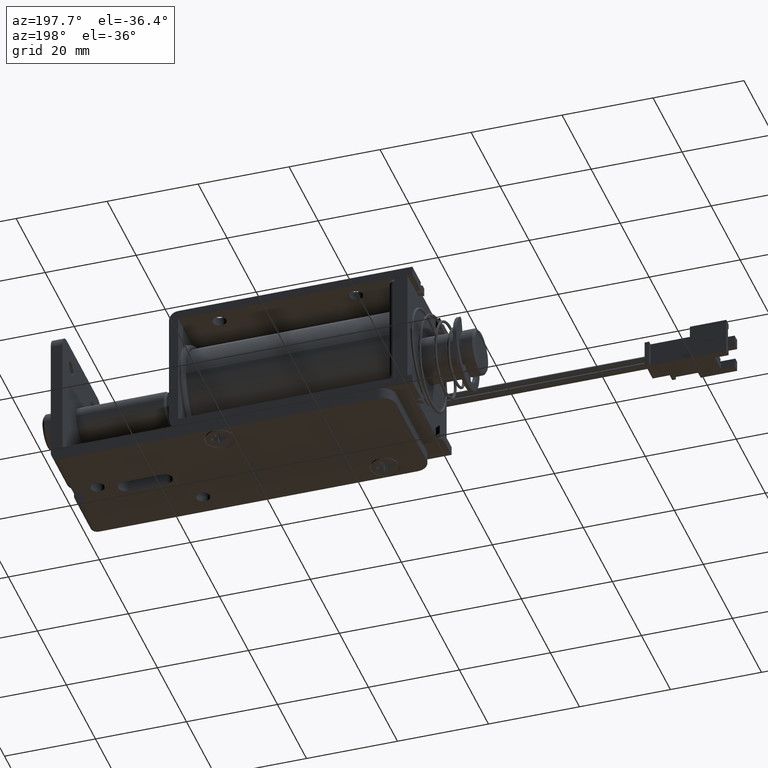
[diagram: clean part render]
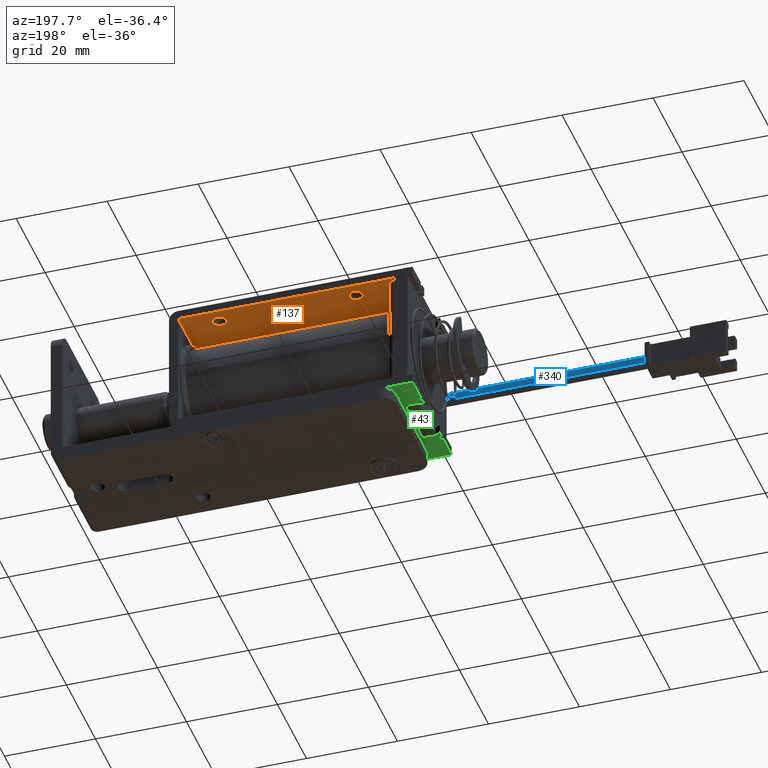
[diagram: same view with three faces highlighted in distinct colors, each labeled with its STEP entity id]
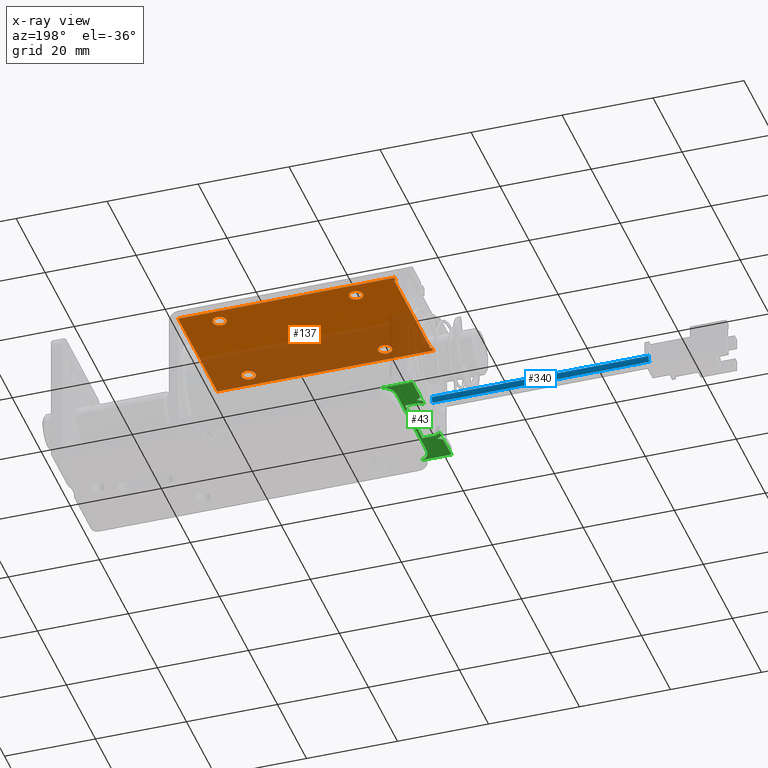
[diagram: x-ray of the same camera — body ghosted, the three highlighted faces saturated]
A machine part, auxiliary view with three faces highlighted in distinct colors.
The next image is the same camera in x-ray (body ghosted, the three faces saturated) — at least one of them is partly hidden behind the body in this view.
Their STEP definitions:

[orange] entity #137 — the highlighted planar face has unit normal (0, 0, -1).
#137=ADVANCED_FACE('',(#1387,#1388,#1389,#1390,#1391),#1386,.T.);
#1386=PLANE('',#4408);
#1387=FACE_OUTER_BOUND('',#4409,.T.);
#1388=FACE_BOUND('',#4410,.T.);
#1389=FACE_BOUND('',#4411,.T.);
#1390=FACE_BOUND('',#4412,.T.);
#1391=FACE_BOUND('',#4413,.T.);
#4405=CARTESIAN_POINT('',(-2.32500000000E+001,-1.62000000000E+001,1.30000000000E+001));
#4406=DIRECTION('',(0.00000000000E+000,0.00000000000E+000,-1.00000000000E+000));
#4407=DIRECTION('',(-1.00000000000E+000,0.00000000000E+000,0.00000000000E+000));
#4408=AXIS2_PLACEMENT_3D('',#4405,#4406,#4407);
#4409=EDGE_LOOP('',(#7561,#7562,#7563,#7564,#7565,#7566,#7567,#7568));
#4410=EDGE_LOOP('',(#7569,#7570));
#4411=EDGE_LOOP('',(#7571,#7572));
#4412=EDGE_LOOP('',(#7573,#7574));
#4413=EDGE_LOOP('',(#7575,#7576));
#7561=ORIENTED_EDGE('',*,*,#9155,.T.);
#7562=ORIENTED_EDGE('',*,*,#9156,.T.);
#7563=ORIENTED_EDGE('',*,*,#8781,.T.);
#7564=ORIENTED_EDGE('',*,*,#9157,.F.);
#7565=ORIENTED_EDGE('',*,*,#9158,.T.);
#7566=ORIENTED_EDGE('',*,*,#9159,.T.);
#7567=ORIENTED_EDGE('',*,*,#9160,.T.);
#7568=ORIENTED_EDGE('',*,*,#9161,.T.);
#7569=ORIENTED_EDGE('',*,*,#9162,.F.);
#7570=ORIENTED_EDGE('',*,*,#9163,.F.);
#7571=ORIENTED_EDGE('',*,*,#9164,.F.);
#7572=ORIENTED_EDGE('',*,*,#9165,.F.);
#7573=ORIENTED_EDGE('',*,*,#9166,.F.);
#7574=ORIENTED_EDGE('',*,*,#9167,.F.);
#7575=ORIENTED_EDGE('',*,*,#9168,.F.);
#7576=ORIENTED_EDGE('',*,*,#9169,.F.);
#8781=EDGE_CURVE('',#9888,#9880,#9889,.T.);
#9155=EDGE_CURVE('',#12418,#12419,#12420,.T.);
#9156=EDGE_CURVE('',#12419,#9888,#12426,.T.);
#9157=EDGE_CURVE('',#12432,#9880,#12433,.T.);
#9158=EDGE_CURVE('',#12432,#12439,#12440,.T.);
#9159=EDGE_CURVE('',#12439,#12446,#12447,.T.);
#9160=EDGE_CURVE('',#12446,#12453,#12454,.T.);
#9161=EDGE_CURVE('',#12453,#12418,#12460,.T.);
#9162=EDGE_CURVE('',#12466,#12467,#12468,.T.);
#9163=EDGE_CURVE('',#12467,#12466,#12474,.T.);
#9164=EDGE_CURVE('',#12480,#12481,#12482,.T.);
#9165=EDGE_CURVE('',#12481,#12480,#12488,.T.);
#9166=EDGE_CURVE('',#12494,#12495,#12496,.T.);
#9167=EDGE_CURVE('',#12495,#12494,#12502,.T.);
#9168=EDGE_CURVE('',#12508,#12509,#12510,.T.);
#9169=EDGE_CURVE('',#12509,#12508,#12516,.T.);
#9880=VERTEX_POINT('',#15851);
#9888=VERTEX_POINT('',#15856);
#9889=LINE('',#15857,#15858);
#12418=VERTEX_POINT('',#17363);
#12419=VERTEX_POINT('',#17364);
#12420=LINE('',#17365,#17366);
#12426=LINE('',#17368,#17369);
#12432=VERTEX_POINT('',#17371);
#12433=LINE('',#17372,#17373);
#12439=VERTEX_POINT('',#17375);
#12440=LINE('',#17376,#17377);
#12446=VERTEX_POINT('',#17379);
#12447=LINE('',#17380,#17381);
#12453=VERTEX_POINT('',#17383);
#12454=LINE('',#17384,#17385);
#12460=LINE('',#17387,#17388);
#12466=VERTEX_POINT('',#17390);
#12467=VERTEX_POINT('',#17391);
#12468=CIRCLE('',#17395,1.50000000000E+000);
#12474=CIRCLE('',#17399,1.50000000000E+000);
#12480=VERTEX_POINT('',#17400);
#12481=VERTEX_POINT('',#17401);
#12482=CIRCLE('',#17405,1.50000000000E+000);
#12488=CIRCLE('',#17409,1.50000000000E+000);
#12494=VERTEX_POINT('',#17410);
#12495=VERTEX_POINT('',#17411);
#12496=CIRCLE('',#17415,1.50000000000E+000);
#12502=CIRCLE('',#17419,1.50000000000E+000);
#12508=VERTEX_POINT('',#17420);
#12509=VERTEX_POINT('',#17421);
#12510=CIRCLE('',#17425,1.50000000000E+000);
#12516=CIRCLE('',#17429,1.50000000000E+000);
#15851=CARTESIAN_POINT('',(-2.80000000000E+001,-1.35000000000E+001,1.30000000000E+001));
#15856=CARTESIAN_POINT('',(-2.80000000000E+001,1.35000000000E+001,1.30000000000E+001));
#15857=CARTESIAN_POINT('',(-2.80000000000E+001,1.35000000000E+001,1.30000000000E+001));
#15858=VECTOR('',#15859,2.70000000000E+001);
#15859=DIRECTION('',(0.00000000000E+000,-1.00000000000E+000,0.00000000000E+000));
#17363=CARTESIAN_POINT('',(-7.55000000000E+001,1.25000000000E+001,1.30000000000E+001));
#17364=CARTESIAN_POINT('',(-7.55000000000E+001,1.35000000000E+001,1.30000000000E+001));
#17365=CARTESIAN_POINT('',(-7.55000000000E+001,1.25000000000E+001,1.30000000000E+001));
#17366=VECTOR('',#17367,1.00000000000E+000);
#17367=DIRECTION('',(0.00000000000E+000,1.00000000000E+000,0.00000000000E+000));
#17368=CARTESIAN_POINT('',(-7.55000000000E+001,1.35000000000E+001,1.30000000000E+001));
#17369=VECTOR('',#17370,4.75000000000E+001);
#17370=DIRECTION('',(1.00000000000E+000,0.00000000000E+000,0.00000000000E+000));
#17371=CARTESIAN_POINT('',(-7.55000000000E+001,-1.35000000000E+001,1.30000000000E+001));
#17372=CARTESIAN_POINT('',(-7.55000000000E+001,-1.35000000000E+001,1.30000000000E+001));
#17373=VECTOR('',#17374,4.75000000000E+001);
#17374=DIRECTION('',(1.00000000000E+000,0.00000000000E+000,0.00000000000E+000));
#17375=CARTESIAN_POINT('',(-7.55000000000E+001,-1.25000000000E+001,1.30000000000E+001));
#17376=CARTESIAN_POINT('',(-7.55000000000E+001,-1.35000000000E+001,1.30000000000E+001));
#17377=VECTOR('',#17378,1.00000000000E+000);
#17378=DIRECTION('',(0.00000000000E+000,1.00000000000E+000,0.00000000000E+000));
#17379=CARTESIAN_POINT('',(-7.52000000000E+001,-1.25000000000E+001,1.30000000000E+001));
#17380=CARTESIAN_POINT('',(-7.55000000000E+001,-1.25000000000E+001,1.30000000000E+001));
#17381=VECTOR('',#17382,3.00000000000E-001);
#17382=DIRECTION('',(1.00000000000E+000,0.00000000000E+000,0.00000000000E+000));
#17383=CARTESIAN_POINT('',(-7.52000000000E+001,1.25000000000E+001,1.30000000000E+001));
#17384=CARTESIAN_POINT('',(-7.52000000000E+001,-1.25000000000E+001,1.30000000000E+001));
#17385=VECTOR('',#17386,2.50000000000E+001);
#17386=DIRECTION('',(0.00000000000E+000,1.00000000000E+000,0.00000000000E+000));
#17387=CARTESIAN_POINT('',(-7.52000000000E+001,1.25000000000E+001,1.30000000000E+001));
#17388=VECTOR('',#17389,3.00000000000E-001);
#17389=DIRECTION('',(-1.00000000000E+000,0.00000000000E+000,0.00000000000E+000));
#17390=CARTESIAN_POINT('',(-3.45000000000E+001,1.00000000000E+001,1.30000000000E+001));
#17391=CARTESIAN_POINT('',(-3.75000000000E+001,1.00000000000E+001,1.30000000000E+001));
#17392=CARTESIAN_POINT('',(-3.60000000000E+001,1.00000000000E+001,1.30000000000E+001));
#17393=DIRECTION('',(-0.00000000000E+000,0.00000000000E+000,-1.00000000000E+000));
#17394=DIRECTION('',(-1.00000000000E+000,-1.22460635382E-016,0.00000000000E+000));
#17395=AXIS2_PLACEMENT_3D('',#17392,#17393,#17394);
#17396=CARTESIAN_POINT('',(-3.60000000000E+001,1.00000000000E+001,1.30000000000E+001));
#17397=DIRECTION('',(-0.00000000000E+000,0.00000000000E+000,-1.00000000000E+000));
#17398=DIRECTION('',(-1.00000000000E+000,-1.22460635382E-016,0.00000000000E+000));
#17399=AXIS2_PLACEMENT_3D('',#17396,#17397,#17398);
#17400=CARTESIAN_POINT('',(-3.45000000000E+001,-1.00000000000E+001,1.30000000000E+001));
#17401=CARTESIAN_POINT('',(-3.75000000000E+001,-1.00000000000E+001,1.30000000000E+001));
#17402=CARTESIAN_POINT('',(-3.60000000000E+001,-1.00000000000E+001,1.30000000000E+001));
#17403=DIRECTION('',(-0.00000000000E+000,0.00000000000E+000,-1.00000000000E+000));
#17404=DIRECTION('',(-1.00000000000E+000,-1.22460635382E-016,0.00000000000E+000));
#17405=AXIS2_PLACEMENT_3D('',#17402,#17403,#17404);
#17406=CARTESIAN_POINT('',(-3.60000000000E+001,-1.00000000000E+001,1.30000000000E+001));
#17407=DIRECTION('',(-0.00000000000E+000,0.00000000000E+000,-1.00000000000E+000));
#17408=DIRECTION('',(-1.00000000000E+000,-1.22460635382E-016,0.00000000000E+000));
#17409=AXIS2_PLACEMENT_3D('',#17406,#17407,#17408);
#17410=CARTESIAN_POINT('',(-6.45000000000E+001,-1.00000000000E+001,1.30000000000E+001));
#17411=CARTESIAN_POINT('',(-6.75000000000E+001,-1.00000000000E+001,1.30000000000E+001));
#17412=CARTESIAN_POINT('',(-6.60000000000E+001,-1.00000000000E+001,1.30000000000E+001));
#17413=DIRECTION('',(-0.00000000000E+000,0.00000000000E+000,-1.00000000000E+000));
#17414=DIRECTION('',(-1.00000000000E+000,-1.22460635382E-016,0.00000000000E+000));
#17415=AXIS2_PLACEMENT_3D('',#17412,#17413,#17414);
#17416=CARTESIAN_POINT('',(-6.60000000000E+001,-1.00000000000E+001,1.30000000000E+001));
#17417=DIRECTION('',(-0.00000000000E+000,0.00000000000E+000,-1.00000000000E+000));
#17418=DIRECTION('',(-1.00000000000E+000,-1.22460635382E-016,0.00000000000E+000));
#17419=AXIS2_PLACEMENT_3D('',#17416,#17417,#17418);
#17420=CARTESIAN_POINT('',(-6.45000000000E+001,1.00000000000E+001,1.30000000000E+001));
#17421=CARTESIAN_POINT('',(-6.75000000000E+001,1.00000000000E+001,1.30000000000E+001));
#17422=CARTESIAN_POINT('',(-6.60000000000E+001,1.00000000000E+001,1.30000000000E+001));
#17423=DIRECTION('',(-0.00000000000E+000,0.00000000000E+000,-1.00000000000E+000));
#17424=DIRECTION('',(-1.00000000000E+000,-1.22460635382E-016,0.00000000000E+000));
#17425=AXIS2_PLACEMENT_3D('',#17422,#17423,#17424);
#17426=CARTESIAN_POINT('',(-6.60000000000E+001,1.00000000000E+001,1.30000000000E+001));
#17427=DIRECTION('',(-0.00000000000E+000,0.00000000000E+000,-1.00000000000E+000));
#17428=DIRECTION('',(-1.00000000000E+000,-1.22460635382E-016,0.00000000000E+000));
#17429=AXIS2_PLACEMENT_3D('',#17426,#17427,#17428);

[blue] entity #340 — the highlighted cylindrical surface (edge-blend (fillet) strip) has radius 0.7 mm, axis along (-1, -0, 0).
#340=ADVANCED_FACE('',(#3429),#3428,.T.);
#3428=CYLINDRICAL_SURFACE('',#6150,6.99999999996E-001);
#3429=FACE_OUTER_BOUND('',#6151,.T.);
#6147=CARTESIAN_POINT('',(-1.22636061680E+002,-1.43000000000E+001,7.99999999996E-001));
#6148=DIRECTION('',(-1.00000000000E+000,-0.00000000000E+000,0.00000000000E+000));
#6149=DIRECTION('',(0.00000000000E+000,0.00000000000E+000,1.00000000000E+000));
#6150=AXIS2_PLACEMENT_3D('',#6147,#6148,#6149);
#6151=EDGE_LOOP('',(#8523,#8524,#8525,#8526,#8527));
#8523=ORIENTED_EDGE('',*,*,#9025,.F.);
#8524=ORIENTED_EDGE('',*,*,#9607,.F.);
#8525=ORIENTED_EDGE('',*,*,#9608,.F.);
#8526=ORIENTED_EDGE('',*,*,#9609,.F.);
#8527=ORIENTED_EDGE('',*,*,#9610,.T.);
#9025=EDGE_CURVE('',#11538,#11539,#11540,.T.);
#9607=EDGE_CURVE('',#15374,#11538,#15375,.T.);
#9608=EDGE_CURVE('',#15381,#15374,#15382,.T.);
#9609=EDGE_CURVE('',#15388,#15381,#15389,.T.);
#9610=EDGE_CURVE('',#15388,#11539,#15395,.T.);
#11538=VERTEX_POINT('',#16838);
#11539=VERTEX_POINT('',#16839);
#11540=CIRCLE('',#16843,6.99999999996E-001);
#15374=VERTEX_POINT('',#19303);
#15375=(BOUNDED_CURVE() B_SPLINE_CURVE(1,(#19304,#19305),.UNSPECIFIED.,.F.,.F.) B_SPLINE_CURVE_WITH_KNOTS((2,2),(8.33333335810E-002,9.16666666255E-001),.UNSPECIFIED.) CURVE() GEOMETRIC_REPRESENTATION_ITEM() RATIONAL_B_SPLINE_CURVE((1.00000000000E+000,1.00000000000E+000)) REPRESENTATION_ITEM('') );
#15381=VERTEX_POINT('',#19306);
#15382=CIRCLE('',#19310,6.99999999996E-001);
#15388=VERTEX_POINT('',#19311);
#15389=CIRCLE('',#19315,6.99999999996E-001);
#15395=(BOUNDED_CURVE() B_SPLINE_CURVE(1,(#19316,#19317),.UNSPECIFIED.,.F.,.F.) B_SPLINE_CURVE_WITH_KNOTS((2,2),(8.33333333333E-002,9.16666666667E-001),.UNSPECIFIED.) CURVE() GEOMETRIC_REPRESENTATION_ITEM() RATIONAL_B_SPLINE_CURVE((7.50000000000E-001,7.50000000000E-001)) REPRESENTATION_ITEM('') );
#16838=CARTESIAN_POINT('',(-1.22736061680E+002,-1.43000000000E+001,1.49999999999E+000));
#16839=CARTESIAN_POINT('',(-1.22736061680E+002,-1.43000000000E+001,1.00000000000E-001));
#16840=CARTESIAN_POINT('',(-1.22736061680E+002,-1.43000000000E+001,7.99999999996E-001));
#16841=DIRECTION('',(-1.00000000000E+000,0.00000000000E+000,0.00000000000E+000));
#16842=DIRECTION('',(0.00000000000E+000,-1.22460635382E-016,1.00000000000E+000));
#16843=AXIS2_PLACEMENT_3D('',#16840,#16841,#16842);
#19303=CARTESIAN_POINT('',(-7.50999999999E+001,-1.43000000000E+001,1.49999999999E+000));
#19304=CARTESIAN_POINT('',(-7.51000000141E+001,-1.43000000000E+001,1.49999999999E+000));
#19305=CARTESIAN_POINT('',(-1.22736061657E+002,-1.43000000000E+001,1.49999999999E+000));
#19306=CARTESIAN_POINT('',(-7.50999999999E+001,-1.36000000000E+001,7.99999999996E-001));
#19307=CARTESIAN_POINT('',(-7.50999999999E+001,-1.43000000000E+001,7.99999999996E-001));
#19308=DIRECTION('',(1.00000000000E+000,-2.73691106313E-048,-1.83697019872E-016));
#19309=DIRECTION('',(1.83697019872E-016,-1.22460635382E-016,1.00000000000E+000));
#19310=AXIS2_PLACEMENT_3D('',#19307,#19308,#19309);
#19311=CARTESIAN_POINT('',(-7.50999999999E+001,-1.43000726535E+001,1.00000003770E-001));
#19312=CARTESIAN_POINT('',(-7.50999999999E+001,-1.43000000000E+001,7.99999999996E-001));
#19313=DIRECTION('',(1.00000000000E+000,-2.73691106313E-048,-1.83697019872E-016));
#19314=DIRECTION('',(1.83697019872E-016,-1.22460635382E-016,1.00000000000E+000));
#19315=AXIS2_PLACEMENT_3D('',#19312,#19313,#19314);
#19316=CARTESIAN_POINT('',(-7.50999999999E+001,-1.43000000000E+001,1.00000000000E-001));
#19317=CARTESIAN_POINT('',(-1.22736061680E+002,-1.43000000000E+001,1.00000000000E-001));

[green] entity #43 — the highlighted planar face has unit normal (0, 0, -1).
#43=ADVANCED_FACE('',(#418),#417,.T.);
#417=PLANE('',#3907);
#418=FACE_OUTER_BOUND('',#3908,.T.);
#3904=CARTESIAN_POINT('',(-7.20949260323E+001,-1.60800000000E+001,-1.50000000000E+001));
#3905=DIRECTION('',(0.00000000000E+000,0.00000000000E+000,-1.00000000000E+000));
#3906=DIRECTION('',(-1.00000000000E+000,0.00000000000E+000,0.00000000000E+000));
#3907=AXIS2_PLACEMENT_3D('',#3904,#3905,#3906);
#3908=EDGE_LOOP('',(#6938,#6939,#6940,#6941,#6942,#6943,#6944,#6945,#6946,#6947,#6948,#6949,#6950,#6951,#6952,#6953,#6954,#6955));
#6938=ORIENTED_EDGE('',*,*,#8762,.T.);
#6939=ORIENTED_EDGE('',*,*,#8763,.F.);
#6940=ORIENTED_EDGE('',*,*,#8764,.F.);
#6941=ORIENTED_EDGE('',*,*,#8765,.F.);
#6942=ORIENTED_EDGE('',*,*,#8766,.F.);
#6943=ORIENTED_EDGE('',*,*,#8767,.F.);
#6944=ORIENTED_EDGE('',*,*,#8768,.F.);
#6945=ORIENTED_EDGE('',*,*,#8769,.T.);
#6946=ORIENTED_EDGE('',*,*,#8770,.T.);
#6947=ORIENTED_EDGE('',*,*,#8771,.T.);
#6948=ORIENTED_EDGE('',*,*,#8772,.T.);
#6949=ORIENTED_EDGE('',*,*,#8773,.F.);
#6950=ORIENTED_EDGE('',*,*,#8774,.F.);
#6951=ORIENTED_EDGE('',*,*,#8775,.F.);
#6952=ORIENTED_EDGE('',*,*,#8776,.F.);
#6953=ORIENTED_EDGE('',*,*,#8777,.F.);
#6954=ORIENTED_EDGE('',*,*,#8778,.T.);
#6955=ORIENTED_EDGE('',*,*,#8779,.T.);
#8762=EDGE_CURVE('',#9754,#9755,#9756,.T.);
#8763=EDGE_CURVE('',#9762,#9755,#9763,.T.);
#8764=EDGE_CURVE('',#9769,#9762,#9770,.T.);
#8765=EDGE_CURVE('',#9776,#9769,#9777,.T.);
#8766=EDGE_CURVE('',#9783,#9776,#9784,.T.);
#8767=EDGE_CURVE('',#9790,#9783,#9791,.T.);
#8768=EDGE_CURVE('',#9797,#9790,#9798,.T.);
#8769=EDGE_CURVE('',#9797,#9804,#9805,.T.);
#8770=EDGE_CURVE('',#9804,#9811,#9812,.T.);
#8771=EDGE_CURVE('',#9811,#9818,#9819,.T.);
#8772=EDGE_CURVE('',#9818,#9825,#9826,.T.);
#8773=EDGE_CURVE('',#9832,#9825,#9833,.T.);
#8774=EDGE_CURVE('',#9839,#9832,#9840,.T.);
#8775=EDGE_CURVE('',#9846,#9839,#9847,.T.);
#8776=EDGE_CURVE('',#9853,#9846,#9854,.T.);
#8777=EDGE_CURVE('',#9860,#9853,#9861,.T.);
#8778=EDGE_CURVE('',#9860,#9867,#9868,.T.);
#8779=EDGE_CURVE('',#9867,#9754,#9874,.T.);
#9754=VERTEX_POINT('',#15779);
#9755=VERTEX_POINT('',#15780);
#9756=LINE('',#15781,#15782);
#9762=VERTEX_POINT('',#15784);
#9763=LINE('',#15785,#15786);
#9769=VERTEX_POINT('',#15788);
#9770=LINE('',#15789,#15790);
#9776=VERTEX_POINT('',#15792);
#9777=LINE('',#15793,#15794);
#9783=VERTEX_POINT('',#15796);
#9784=LINE('',#15797,#15798);
#9790=VERTEX_POINT('',#15800);
#9791=(BOUNDED_CURVE() B_SPLINE_CURVE(1,(#15801,#15802),.UNSPECIFIED.,.F.,.F.) B_SPLINE_CURVE_WITH_KNOTS((2,2),(0.00000000000E+000,1.00000000000E+000),.UNSPECIFIED.) CURVE() GEOMETRIC_REPRESENTATION_ITEM() RATIONAL_B_SPLINE_CURVE((1.00000000000E+000,1.00000000000E+000)) REPRESENTATION_ITEM('') );
#9797=VERTEX_POINT('',#15803);
#9798=(BOUNDED_CURVE() B_SPLINE_CURVE(1,(#15804,#15805),.UNSPECIFIED.,.F.,.F.) B_SPLINE_CURVE_WITH_KNOTS((2,2),(0.00000000000E+000,1.00000000000E+000),.UNSPECIFIED.) CURVE() GEOMETRIC_REPRESENTATION_ITEM() RATIONAL_B_SPLINE_CURVE((1.00000000000E+000,1.00000000000E+000)) REPRESENTATION_ITEM('') );
#9804=VERTEX_POINT('',#15806);
#9805=CIRCLE('',#15810,3.00000000000E+000);
#9811=VERTEX_POINT('',#15811);
#9812=LINE('',#15812,#15813);
#9818=VERTEX_POINT('',#15815);
#9819=CIRCLE('',#15819,3.00000000000E+000);
#9825=VERTEX_POINT('',#15820);
#9826=LINE('',#15821,#15822);
#9832=VERTEX_POINT('',#15824);
#9833=LINE('',#15825,#15826);
#9839=VERTEX_POINT('',#15828);
#9840=LINE('',#15829,#15830);
#9846=VERTEX_POINT('',#15832);
#9847=LINE('',#15833,#15834);
#9853=VERTEX_POINT('',#15836);
#9854=LINE('',#15837,#15838);
#9860=VERTEX_POINT('',#15840);
#9861=LINE('',#15841,#15842);
#9867=VERTEX_POINT('',#15844);
#9868=LINE('',#15845,#15846);
#9874=LINE('',#15848,#15849);
#15779=CARTESIAN_POINT('',(-7.55000000000E+001,6.00000000000E+000,-1.50000000000E+001));
#15780=CARTESIAN_POINT('',(-7.84000000000E+001,6.00000000000E+000,-1.50000000000E+001));
#15781=CARTESIAN_POINT('',(-7.55000000000E+001,6.00000000000E+000,-1.50000000000E+001));
#15782=VECTOR('',#15783,2.90000000000E+000);
#15783=DIRECTION('',(-1.00000000000E+000,3.88960894145E-014,0.00000000000E+000));
#15784=CARTESIAN_POINT('',(-7.95000000000E+001,5.36491470389E+000,-1.50000000000E+001));
#15785=CARTESIAN_POINT('',(-7.95000000000E+001,5.36491470389E+000,-1.50000000000E+001));
#15786=VECTOR('',#15787,1.27017059222E+000);
#15787=DIRECTION('',(8.66025403785E-001,5.00000000000E-001,0.00000000000E+000));
#15788=CARTESIAN_POINT('',(-7.95000000000E+001,6.51961524227E+000,-1.50000000000E+001));
#15789=CARTESIAN_POINT('',(-7.95000000000E+001,6.51961524227E+000,-1.50000000000E+001));
#15790=VECTOR('',#15791,1.15470053838E+000);
#15791=DIRECTION('',(0.00000000000E+000,-1.00000000000E+000,0.00000000000E+000));
#15792=CARTESIAN_POINT('',(-7.84000000000E+001,7.15470053838E+000,-1.50000000000E+001));
#15793=CARTESIAN_POINT('',(-7.84000000000E+001,7.15470053838E+000,-1.50000000000E+001));
#15794=VECTOR('',#15795,1.27017059222E+000);
#15795=DIRECTION('',(-8.66025403785E-001,-5.00000000000E-001,0.00000000000E+000));
#15796=CARTESIAN_POINT('',(-7.95000000000E+001,7.78978583449E+000,-1.50000000000E+001));
#15797=CARTESIAN_POINT('',(-7.95000000000E+001,7.78978583449E+000,-1.50000000000E+001));
#15798=VECTOR('',#15799,1.27017059222E+000);
#15799=DIRECTION('',(8.66025403784E-001,-5.00000000000E-001,0.00000000000E+000));
#15800=CARTESIAN_POINT('',(-7.95000000000E+001,1.34000000000E+001,-1.49900000000E+001));
#15801=CARTESIAN_POINT('',(-7.95000000000E+001,1.34000000000E+001,-1.49900000000E+001));
#15802=CARTESIAN_POINT('',(-7.95000000000E+001,7.78978583449E+000,-1.50000000000E+001));
#15803=CARTESIAN_POINT('',(-7.27681145748E+001,1.34000000000E+001,-1.50000000000E+001));
#15804=CARTESIAN_POINT('',(-7.27681145748E+001,1.34000000000E+001,-1.50000000000E+001));
#15805=CARTESIAN_POINT('',(-7.95000000000E+001,1.34000000000E+001,-1.49900000000E+001));
#15806=CARTESIAN_POINT('',(-7.50000000000E+001,1.05000000000E+001,-1.50000000000E+001));
#15807=CARTESIAN_POINT('',(-7.20000000000E+001,1.05000000000E+001,-1.50000000000E+001));
#15808=DIRECTION('',(0.00000000000E+000,-0.00000000000E+000,1.00000000000E+000));
#15809=DIRECTION('',(1.00000000000E+000,-0.00000000000E+000,-0.00000000000E+000));
#15810=AXIS2_PLACEMENT_3D('',#15807,#15808,#15809);
#15811=CARTESIAN_POINT('',(-7.50000000000E+001,-1.05000000000E+001,-1.50000000000E+001));
#15812=CARTESIAN_POINT('',(-7.50000000000E+001,1.05000000000E+001,-1.50000000000E+001));
#15813=VECTOR('',#15814,2.10000000000E+001);
#15814=DIRECTION('',(0.00000000000E+000,-1.00000000000E+000,0.00000000000E+000));
#15815=CARTESIAN_POINT('',(-7.27681145748E+001,-1.34000000000E+001,-1.50000000000E+001));
#15816=CARTESIAN_POINT('',(-7.20000000000E+001,-1.05000000000E+001,-1.50000000000E+001));
#15817=DIRECTION('',(0.00000000000E+000,-0.00000000000E+000,1.00000000000E+000));
#15818=DIRECTION('',(1.00000000000E+000,-0.00000000000E+000,-0.00000000000E+000));
#15819=AXIS2_PLACEMENT_3D('',#15816,#15817,#15818);
#15820=CARTESIAN_POINT('',(-7.95000000000E+001,-1.34000000000E+001,-1.50000000000E+001));
#15821=CARTESIAN_POINT('',(-7.27681145748E+001,-1.34000000000E+001,-1.50000000000E+001));
#15822=VECTOR('',#15823,6.73188542521E+000);
#15823=DIRECTION('',(-1.00000000000E+000,0.00000000000E+000,-1.16341215131E-012));
#15824=CARTESIAN_POINT('',(-7.95000000000E+001,-7.78978583449E+000,-1.50000000000E+001));
#15825=CARTESIAN_POINT('',(-7.95000000000E+001,-7.78978583449E+000,-1.50000000000E+001));
#15826=VECTOR('',#15827,5.61021416551E+000);
#15827=DIRECTION('',(0.00000000000E+000,-1.00000000000E+000,0.00000000000E+000));
#15828=CARTESIAN_POINT('',(-7.84000000000E+001,-7.15470053838E+000,-1.50000000000E+001));
#15829=CARTESIAN_POINT('',(-7.84000000000E+001,-7.15470053838E+000,-1.50000000000E+001));
#15830=VECTOR('',#15831,1.27017059222E+000);
#15831=DIRECTION('',(-8.66025403784E-001,-5.00000000000E-001,0.00000000000E+000));
#15832=CARTESIAN_POINT('',(-7.95000000000E+001,-6.51961524227E+000,-1.50000000000E+001));
#15833=CARTESIAN_POINT('',(-7.95000000000E+001,-6.51961524227E+000,-1.50000000000E+001));
#15834=VECTOR('',#15835,1.27017059222E+000);
#15835=DIRECTION('',(8.66025403784E-001,-5.00000000000E-001,0.00000000000E+000));
#15836=CARTESIAN_POINT('',(-7.95000000000E+001,-5.36491470389E+000,-1.50000000000E+001));
#15837=CARTESIAN_POINT('',(-7.95000000000E+001,-5.36491470389E+000,-1.50000000000E+001));
#15838=VECTOR('',#15839,1.15470053838E+000);
#15839=DIRECTION('',(0.00000000000E+000,-1.00000000000E+000,0.00000000000E+000));
#15840=CARTESIAN_POINT('',(-7.84000000000E+001,-6.00000000000E+000,-1.50000000000E+001));
#15841=CARTESIAN_POINT('',(-7.84000000000E+001,-6.00000000000E+000,-1.50000000000E+001));
#15842=VECTOR('',#15843,1.27017059222E+000);
#15843=DIRECTION('',(-8.66025403784E-001,5.00000000000E-001,0.00000000000E+000));
#15844=CARTESIAN_POINT('',(-7.55000000000E+001,-6.00000000000E+000,-1.50000000000E+001));
#15845=CARTESIAN_POINT('',(-7.84000000000E+001,-6.00000000000E+000,-1.50000000000E+001));
#15846=VECTOR('',#15847,2.90000000000E+000);
#15847=DIRECTION('',(1.00000000000E+000,3.06268420586E-016,0.00000000000E+000));
#15848=CARTESIAN_POINT('',(-7.55000000000E+001,-6.00000000000E+000,-1.50000000000E+001));
#15849=VECTOR('',#15850,1.20000000000E+001);
#15850=DIRECTION('',(0.00000000000E+000,1.00000000000E+000,0.00000000000E+000));